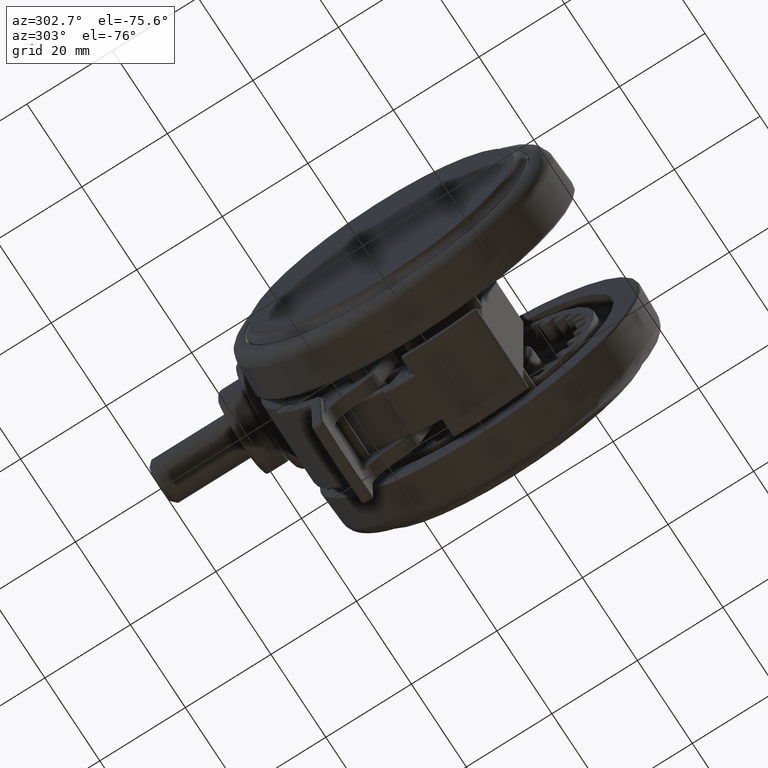
[diagram: clean part render]
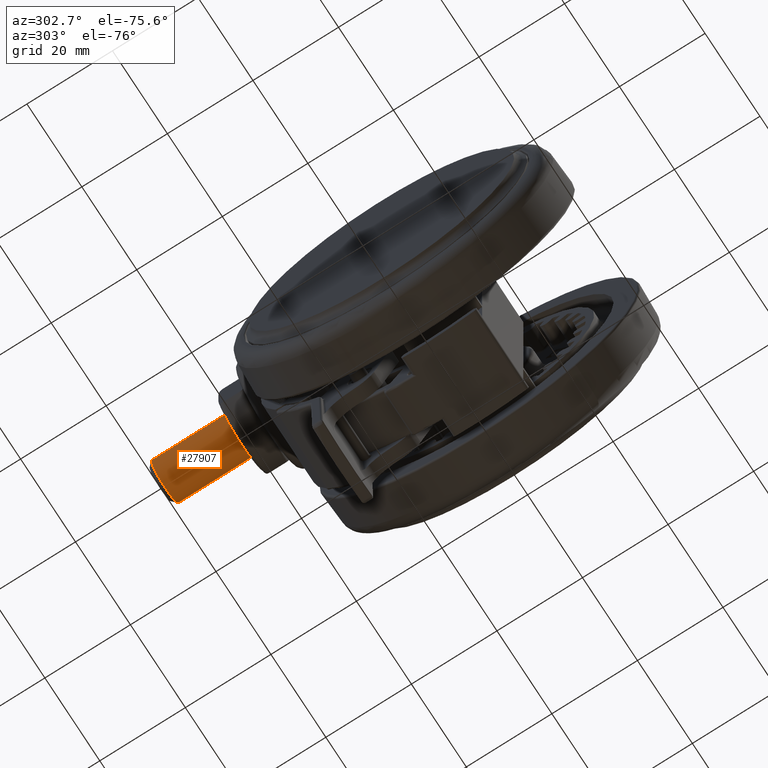
[diagram: same view with one face highlighted and labeled with its STEP entity id]
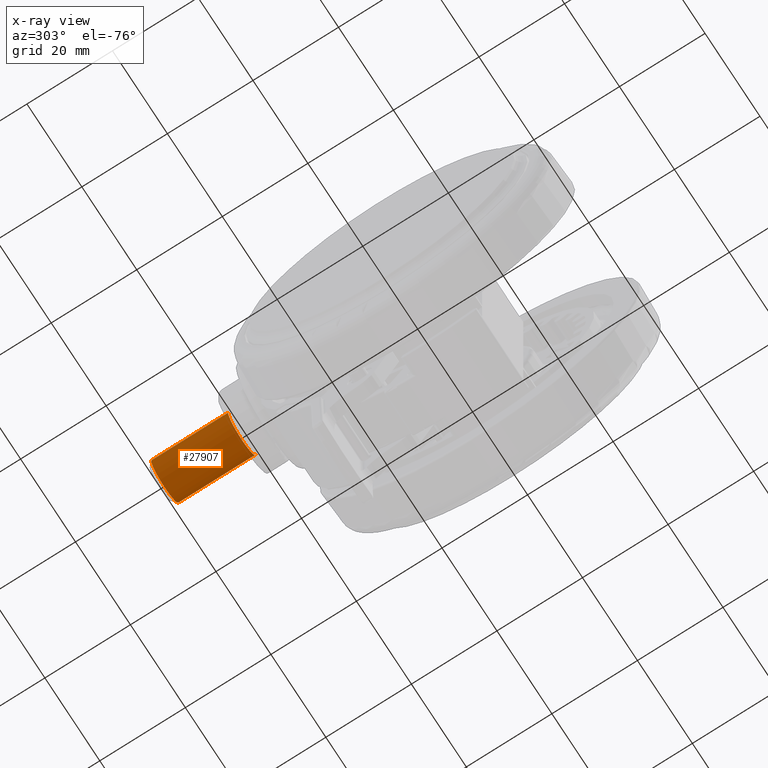
[diagram: x-ray of the same camera — body ghosted, the highlighted face saturated]
A machine part, auxiliary view. The second image highlights one B-rep face of the part: STEP entity #27907.
The next image is the same camera in x-ray: the body ghosted, the highlighted face saturated — about 0% of this face is hidden behind the body in this view.
In plain terms, the highlighted cylindrical surface (edge-blend (fillet) strip) has radius 5 mm, axis along (0, -1, 0).
Its self-contained STEP definition (entity closure, byte-faithful):
#785 = AXIS2_PLACEMENT_3D ( 'NONE', #25224, #19491, #59249 ) ;
#1756 = DIRECTION ( 'NONE',  ( 0.7978912437506279200, 0.6028014292833719900, 0.0000000000000000000 ) ) ;
#5193 = CARTESIAN_POINT ( 'NONE',  ( 36.97202710129870700, 60.51801064163317500, -23.84999999999990500 ) ) ;
#7887 = CARTESIAN_POINT ( 'NONE',  ( 36.97202710129870700, 60.51801064163317500, -28.84999999999990200 ) ) ;
#8504 = VECTOR ( 'NONE', #15457, 1000.000000000000100 ) ;
#8983 = EDGE_CURVE ( 'NONE', #67968, #18800, #16680, .T. ) ;
#10277 = AXIS2_PLACEMENT_3D ( 'NONE', #35910, #1756, #41632 ) ;
#10956 = DIRECTION ( 'NONE',  ( 0.0000000000000000000, 0.0000000000000000000, -1.000000000000000000 ) ) ;
#13077 = CARTESIAN_POINT ( 'NONE',  ( 36.97202710129870700, 60.51801064163317500, -18.84999999999990900 ) ) ;
#15457 = DIRECTION ( 'NONE',  ( -0.7978912437506278100, -0.6028014292833719900, 0.0000000000000000000 ) ) ;
#16680 = LINE ( 'NONE', #60953, #46919 ) ;
#16858 = EDGE_LOOP ( 'NONE', ( #45101, #52334, #57492, #29038 ) ) ;
#18134 = CARTESIAN_POINT ( 'NONE',  ( 22.62594253866242200, 49.67964094311814400, -28.84999999999990500 ) ) ;
#18800 = VERTEX_POINT ( 'NONE', #62057 ) ;
#19491 = DIRECTION ( 'NONE',  ( -0.7978912437506279200, -0.6028014292833719900, 0.0000000000000000000 ) ) ;
#23541 = EDGE_CURVE ( 'NONE', #65522, #67968, #67930, .T. ) ;
#23594 = FACE_OUTER_BOUND ( 'NONE', #16858, .T. ) ;
#25224 = CARTESIAN_POINT ( 'NONE',  ( 37.78587616992435700, 61.13286809950221100, -23.84999999999990500 ) ) ;
#27907 = ADVANCED_FACE ( 'NONE', ( #23594 ), #52086, .T. ) ;
#29038 = ORIENTED_EDGE ( 'NONE', *, *, #59466, .T. ) ;
#35910 = CARTESIAN_POINT ( 'NONE',  ( 22.62594253866242200, 49.67964094311814400, -23.84999999999990500 ) ) ;
#38068 = DIRECTION ( 'NONE',  ( -0.7978912437506278100, -0.6028014292833719900, 0.0000000000000000000 ) ) ;
#41632 = DIRECTION ( 'NONE',  ( 0.0000000000000000000, 0.0000000000000000000, -1.000000000000000000 ) ) ;
#43813 = CARTESIAN_POINT ( 'NONE',  ( 37.78587616992435700, 61.13286809950221100, -28.84999999999990500 ) ) ;
#44163 = AXIS2_PLACEMENT_3D ( 'NONE', #5193, #45034, #10956 ) ;
#45034 = DIRECTION ( 'NONE',  ( -0.7978912437506279200, -0.6028014292833719900, -0.0000000000000000000 ) ) ;
#45101 = ORIENTED_EDGE ( 'NONE', *, *, #47077, .F. ) ;
#46919 = VECTOR ( 'NONE', #38068, 1000.000000000000100 ) ;
#47077 = EDGE_CURVE ( 'NONE', #65522, #58887, #53934, .T. ) ;
#52086 = CYLINDRICAL_SURFACE ( 'NONE', #785, 5.000000000000000900 ) ;
#52334 = ORIENTED_EDGE ( 'NONE', *, *, #23541, .T. ) ;
#53934 = LINE ( 'NONE', #43813, #8504 ) ;
#57492 = ORIENTED_EDGE ( 'NONE', *, *, #8983, .T. ) ;
#58887 = VERTEX_POINT ( 'NONE', #18134 ) ;
#59249 = DIRECTION ( 'NONE',  ( 0.0000000000000000000, 0.0000000000000000000, 1.000000000000000000 ) ) ;
#59466 = EDGE_CURVE ( 'NONE', #18800, #58887, #69441, .T. ) ;
#60953 = CARTESIAN_POINT ( 'NONE',  ( 37.78587616992435700, 61.13286809950221100, -18.84999999999990500 ) ) ;
#62057 = CARTESIAN_POINT ( 'NONE',  ( 22.62594253866242200, 49.67964094311814400, -18.84999999999990500 ) ) ;
#65522 = VERTEX_POINT ( 'NONE', #7887 ) ;
#67930 = CIRCLE ( 'NONE', #44163, 5.000000000000000900 ) ;
#67968 = VERTEX_POINT ( 'NONE', #13077 ) ;
#69441 = CIRCLE ( 'NONE', #10277, 5.000000000000000900 ) ;